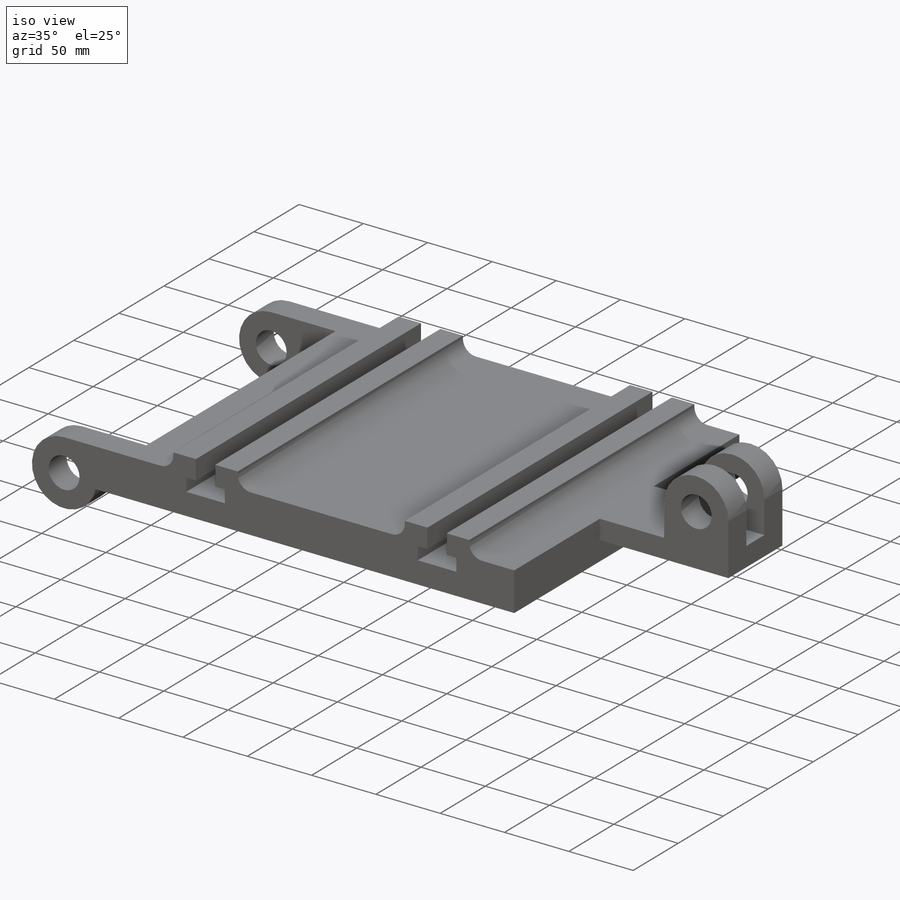
[diagram: iso view]
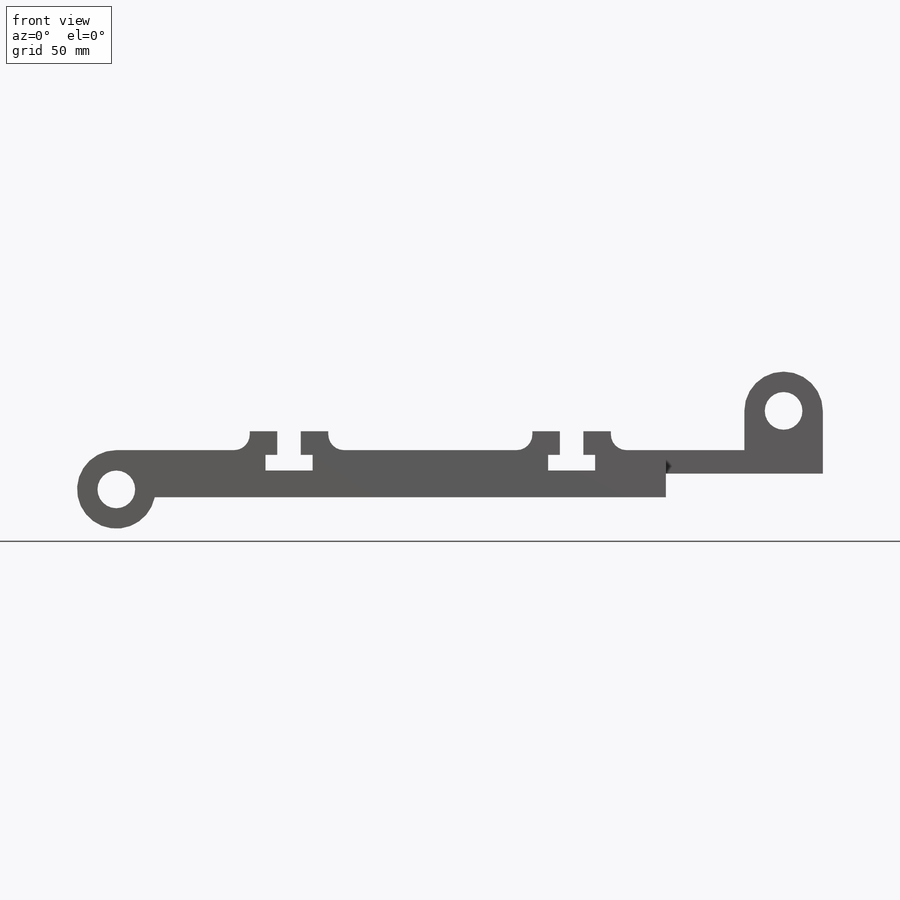
[diagram: front view]
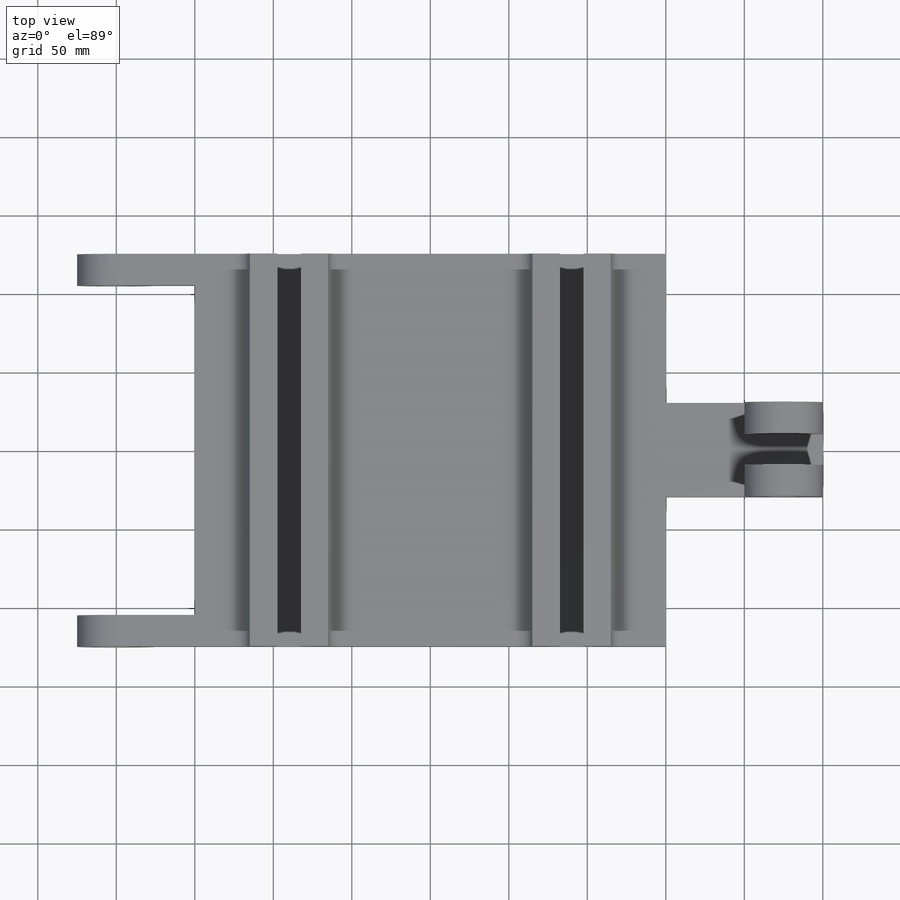
[diagram: top view]
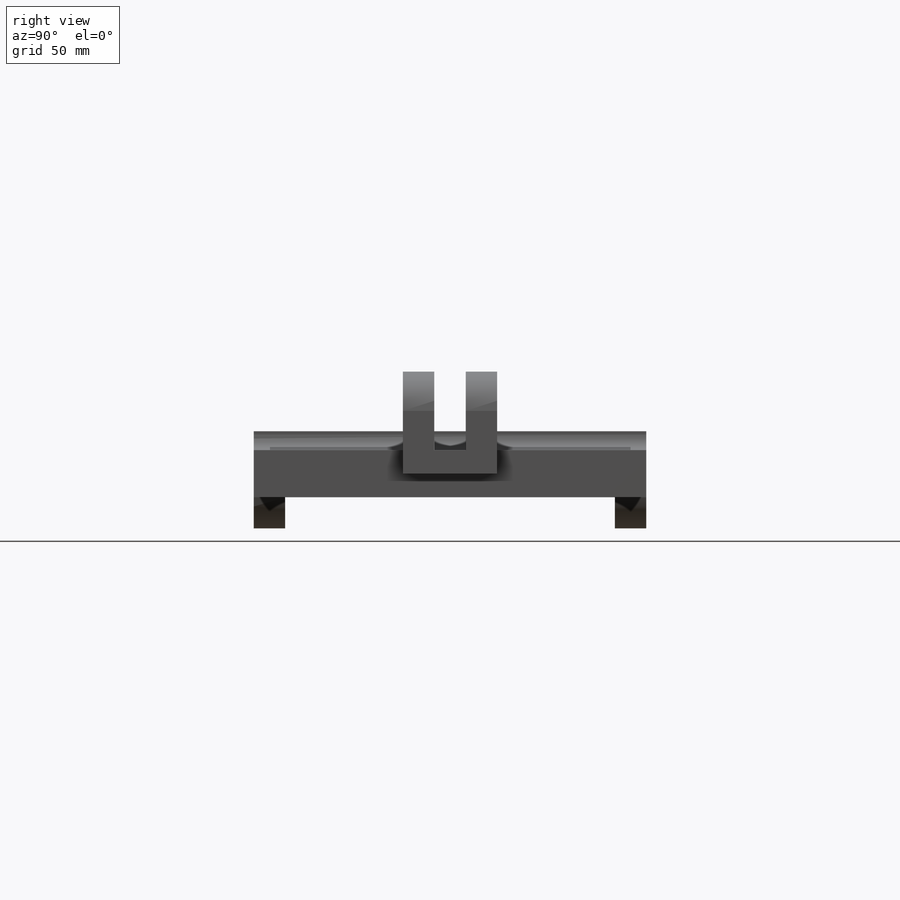
[diagram: right view]
SOLIDWORKS PART (.sldprt)
format: sldprt  version: not decoded by parser v0  size: 330,752 bytes
history: native  units: mm
features: sketch x7, extrude x4, plane x3, cut_extrude x3, material x1, fillet x1, mirror x1 (+13 scaffold rows collapsed)
feature tree (33):
  scaffold x13  (default folders/planes/origin — collapsed)
  material  "Ferro fundido maleável"
  plane  "Plano frontal"
  plane  "Plano superior"
  plane  "Plano direito"
  sketch  "Esboço1"  dims[D1=300.0mm D2=250.0mm]
  extrude  "Ressalto-extrusão1"  Depth=30mm
  sketch  "Esboço3"  dims[D1=130.0mm D2=50.0mm]
  extrude  "Ressalto-extrusão2"  Depth=12mm
  fillet  "Filete1"  Radius=10mm
  sketch  "Esboço4"  dims[D1=25.0mm D2=15.0mm D3=30.0mm D4=10.0mm]
  cut_extrude  "Corte-extrusão1"  [1 undecoded]
  sketch  "Esboço5"  dims[c1.D3=25.0mm c1.D5=24.0mm c1.D1=100.0mm c1.D2=15.0mm c2.D1=15.0mm c2.D2=100.0mm c2.D4=25.0mm]
  extrude  "Ressalto-extrusão3"  Depth=60mm
  sketch  "Esboço6"
  cut_extrude  "Corte-extrusão2"  Depth=20mm
  sketch  "Esboço7"  dims[D1=25.0mm D2=24.0mm D3=50.0mm]
  extrude  "Ressalto-extrusão4"  Depth=20mm
  mirror  "Espelhar1"
  sketch  "Esboço8"  dims[D1=20.0mm D2=20.0mm]
  cut_extrude  "Corte-extrusão3"  Depth=10mm
decode coverage: 13 of 16 modeling features carry decoded parameters
note: 1 parameter value undecoded
note: suppression state not decoded; provenance and decode notes live in map.json
